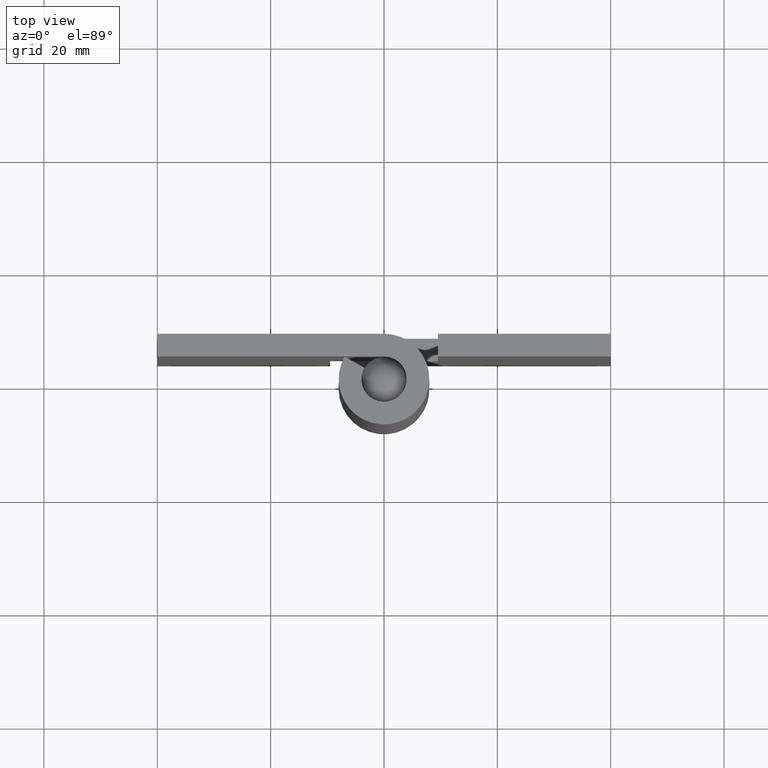
[diagram: clean part render]
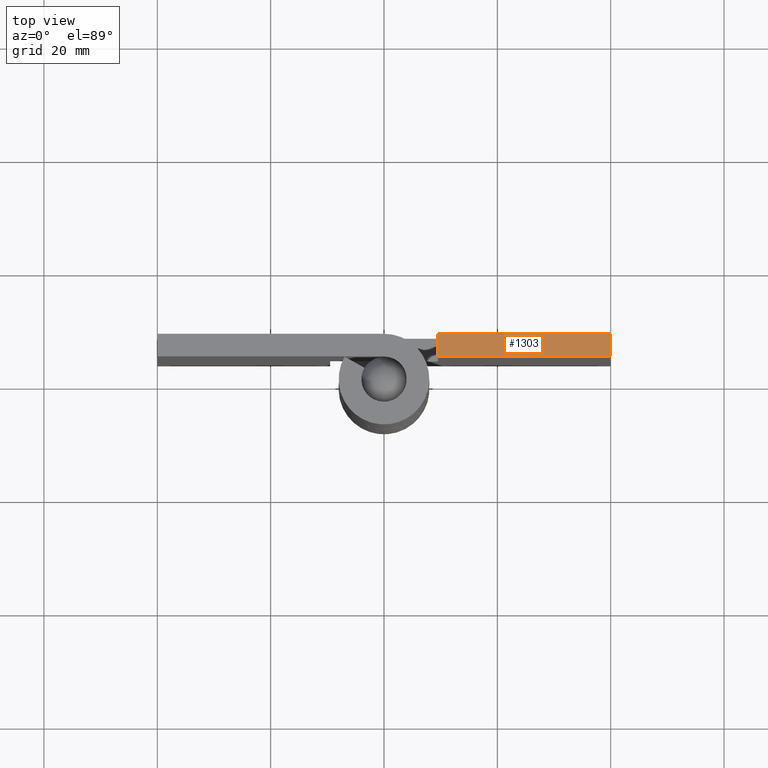
[diagram: same view with one face highlighted and labeled with its STEP entity id]
A machine part, top view. The second image highlights one B-rep face of the part: STEP entity #1303.
In plain terms, the highlighted face is a freeform B-spline surface patch.
Its self-contained STEP definition (entity closure, byte-faithful):
#1177=CARTESIAN_POINT('',(9.500000000000000,4.0,100.0));
#1178=VERTEX_POINT('',#1177);
#1184=CARTESIAN_POINT('',(9.500000000000000,8.0,100.0));
#1185=VERTEX_POINT('',#1184);
#1186=CARTESIAN_POINT('',(9.500000000000000,8.0,100.0));
#1187=CARTESIAN_POINT('',(9.500000000000000,4.0,100.0));
#1188=QUASI_UNIFORM_CURVE('',1,(#1186,#1187),.UNSPECIFIED.,.F.,.U.);
#1189=EDGE_CURVE('',#1185,#1178,#1188,.T.);
#1276=CARTESIAN_POINT('',(7.976525059114917,3.800200007752776,100.0));
#1277=CARTESIAN_POINT('',(41.523475758958817,3.800200007752776,100.0));
#1278=CARTESIAN_POINT('',(7.976525059114917,8.199800099535585,100.0));
#1279=CARTESIAN_POINT('',(41.523475758958817,8.199800099535585,100.0));
#1280=B_SPLINE_SURFACE_WITH_KNOTS('',1,1,((#1276,#1278),(#1277,#1279)),.UNSPECIFIED.,.F.,.F.,.U.,(2,2),(2,2),(0.0,33.546950699843897),(0.0,4.399600091782808),.UNSPECIFIED.);
#1281=CARTESIAN_POINT('',(40.0,8.0,100.0));
#1282=VERTEX_POINT('',#1281);
#1283=CARTESIAN_POINT('',(40.0,8.0,100.0));
#1284=CARTESIAN_POINT('',(9.500000000000000,8.0,100.0));
#1285=QUASI_UNIFORM_CURVE('',1,(#1283,#1284),.UNSPECIFIED.,.F.,.U.);
#1286=EDGE_CURVE('',#1282,#1185,#1285,.T.);
#1287=ORIENTED_EDGE('',*,*,#1286,.T.);
#1288=ORIENTED_EDGE('',*,*,#1189,.T.);
#1289=CARTESIAN_POINT('',(40.0,4.0,100.0));
#1290=VERTEX_POINT('',#1289);
#1291=CARTESIAN_POINT('',(9.500000000000000,4.0,100.0));
#1292=CARTESIAN_POINT('',(40.0,4.0,100.0));
#1293=QUASI_UNIFORM_CURVE('',1,(#1291,#1292),.UNSPECIFIED.,.F.,.U.);
#1294=EDGE_CURVE('',#1178,#1290,#1293,.T.);
#1295=ORIENTED_EDGE('',*,*,#1294,.T.);
#1296=CARTESIAN_POINT('',(40.0,4.0,100.0));
#1297=CARTESIAN_POINT('',(40.0,8.0,100.0));
#1298=QUASI_UNIFORM_CURVE('',1,(#1296,#1297),.UNSPECIFIED.,.F.,.U.);
#1299=EDGE_CURVE('',#1290,#1282,#1298,.T.);
#1300=ORIENTED_EDGE('',*,*,#1299,.T.);
#1301=EDGE_LOOP('',(#1287,#1288,#1295,#1300));
#1302=FACE_OUTER_BOUND('',#1301,.T.);
#1303=ADVANCED_FACE('',(#1302),#1280,.T.);